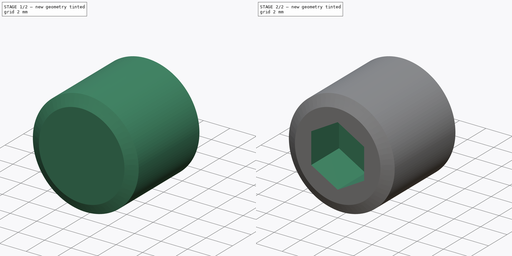
[diagram: build sequence overview — one tinted view per stage of 2, left to right]
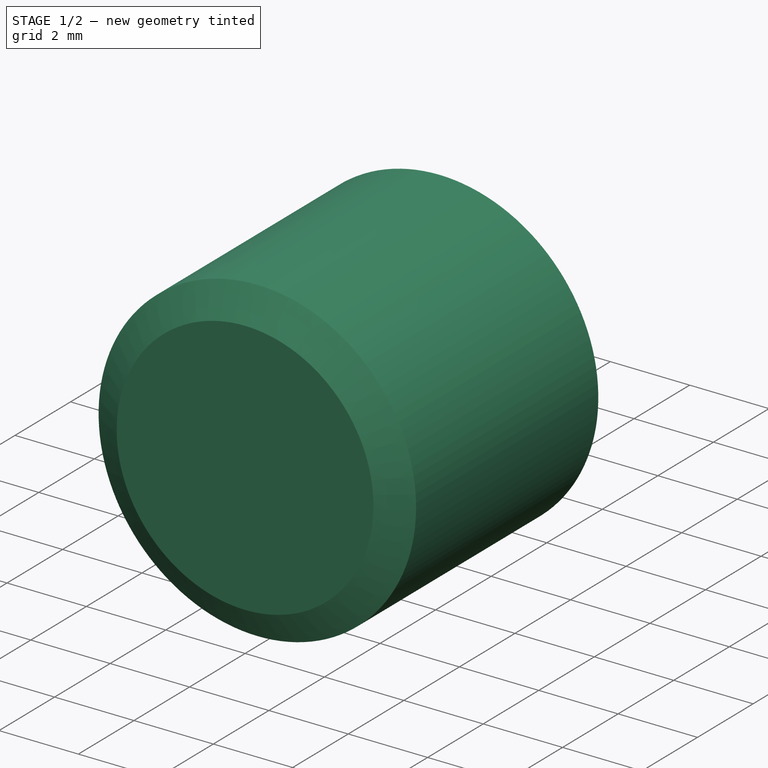
[diagram: stage 1 of 2 — iso view after this stage's code; geometry added in this stage tinted green]
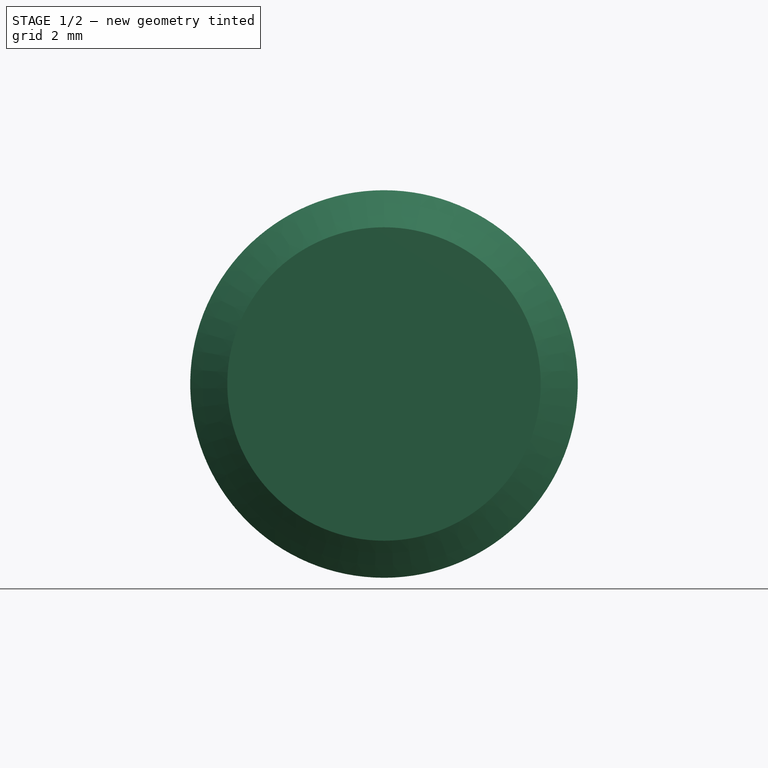
[diagram: stage 1 of 2 — front view after this stage's code; geometry added in this stage tinted green]
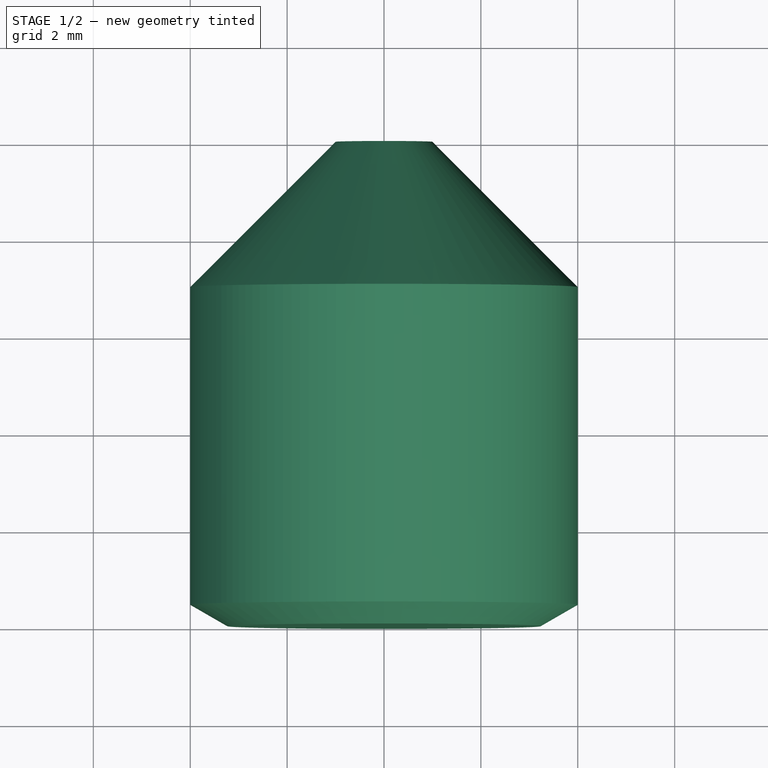
[diagram: stage 1 of 2 — top view after this stage's code; geometry added in this stage tinted green]
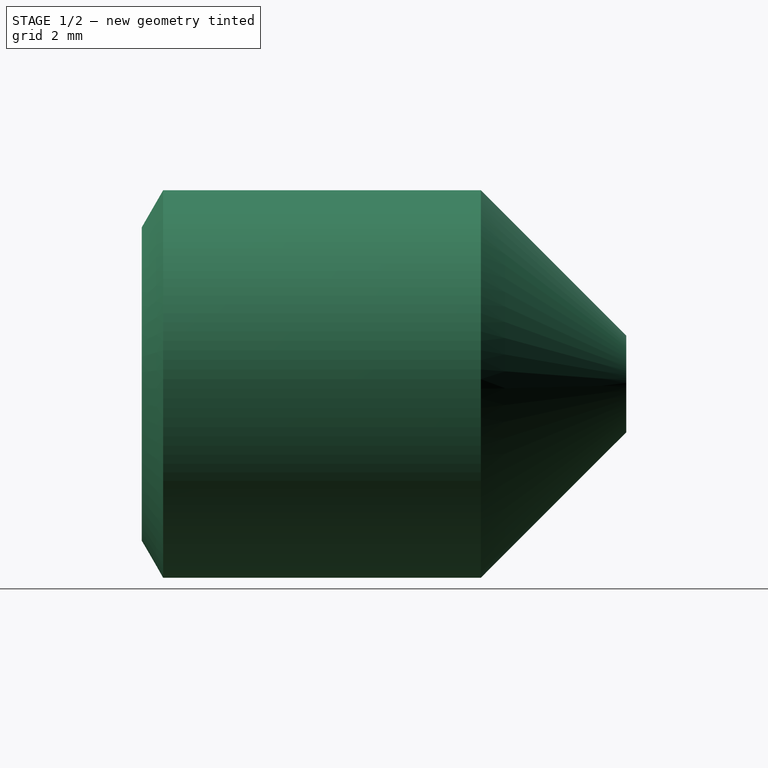
[diagram: stage 1 of 2 — right view after this stage's code; geometry added in this stage tinted green]
FCSTD DOCUMENT  (FreeCAD 0.15R4332 (Git))
Label: Gewindestift_DIN914-M8
License: CC-BY 3.0
LicenseURL: http://creativecommons.org/licenses/by/3.0/
objects: Sketcher::SketchObject×2, PartDesign::Revolution×1, PartDesign::Pocket×1
note: 6 computed .brp shape members not serialized (recipe doc carries the construction recipe); baked Part::Feature solids carry a one-line shape summary decoded from their .brp

FEATURE [Sketcher::SketchObject] Sketch
  Placement = pos=(0,0,0) rot=(0.57735,0.57735,0.57735;2.0944rad)
  sketch-geometry (6):
    g0: LineSegment StartX=0 StartY=0 StartZ=0 EndX=0 EndY=3.235 EndZ=0
    g1: LineSegment StartX=0 StartY=3.235 StartZ=0 EndX=0.441673 EndY=4 EndZ=0
    g2: LineSegment StartX=0.441673 StartY=4 StartZ=0 EndX=7 EndY=4 EndZ=0
    g3: LineSegment StartX=7 StartY=4 StartZ=0 EndX=10 EndY=1 EndZ=0
    g4: LineSegment StartX=10 StartY=1 StartZ=0 EndX=10 EndY=0 EndZ=0
    g5: LineSegment StartX=10 StartY=0 StartZ=0 EndX=0 EndY=0 EndZ=0
  constraints (17):
    c: Coincident(g-1,g0)
    c: Vertical(g0)
    c: Coincident(g0,g1)
    c: Coincident(g1,g2)
    c: Horizontal(g2)
    c: Coincident(g2,g3)
    c: Coincident(g3,g4)
    c: Vertical(g4)
    c: Coincident(g4,g5)
    c: Coincident(g5,g0)
    c: Horizontal(g5)
    c: Angle(g3,g5) = 0.785398
    c: DistanceY(g4) = -1
    c: DistanceY(g-1,g0) = 3.235
    c: DistanceY(g-1,g2) = 4
    c: Angle(g5,g1) = 1.0472
    c: DistanceX(g0,g3) = 10
FEATURE [PartDesign::Revolution] Revolution
  Angle = 360
  Axis = (0,1,0)
  Base = (0,0,0)
  Placement = pos=(0,0,0) rot=(0.57735,0.57735,0.57735;2.0944rad)
  ReferenceAxis = -> Sketch [H_Axis]
  Sketch = -> Sketch
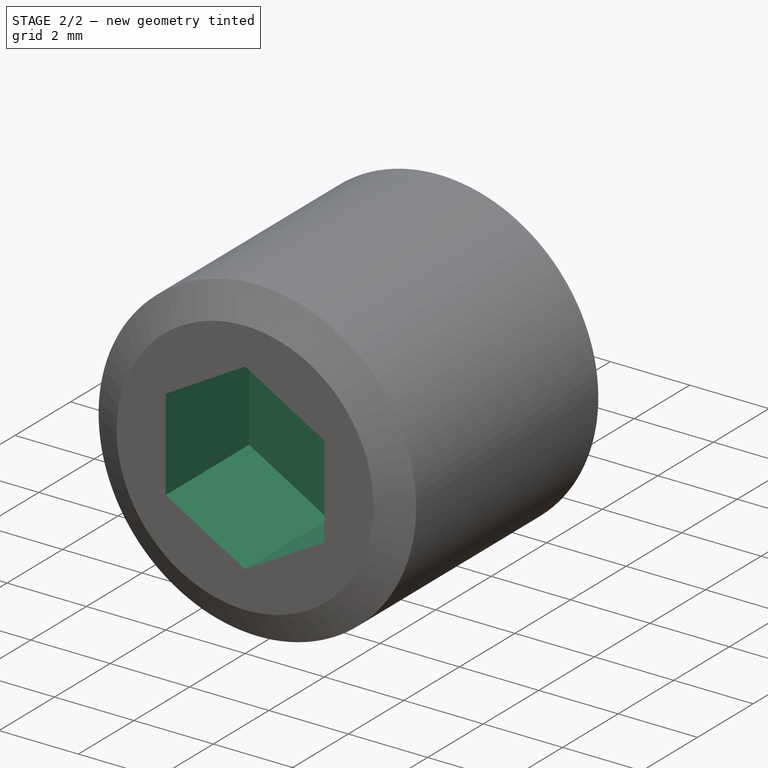
[diagram: stage 2 of 2 — iso view after this stage's code; geometry added in this stage tinted green]
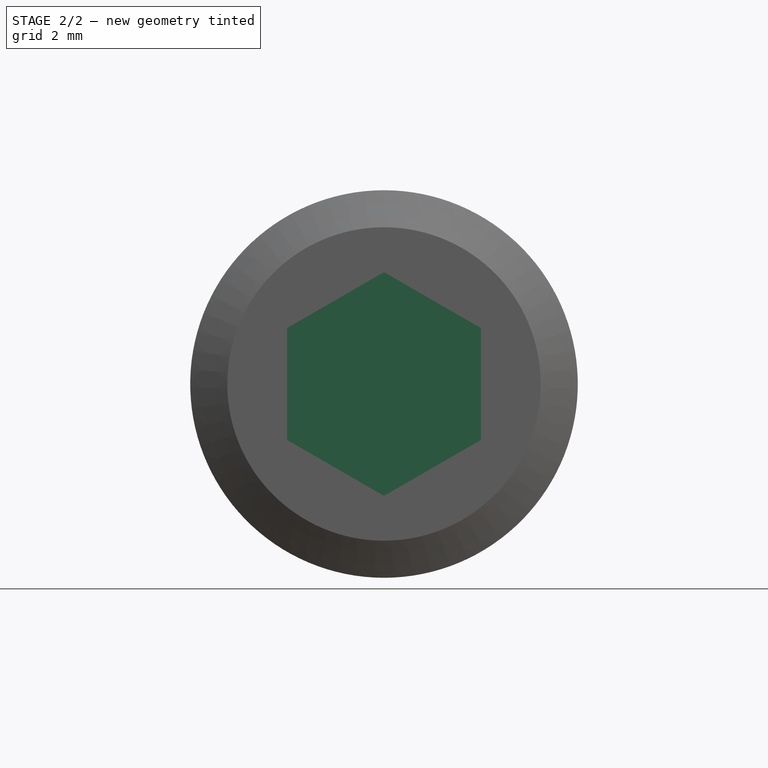
[diagram: stage 2 of 2 — front view after this stage's code; geometry added in this stage tinted green]
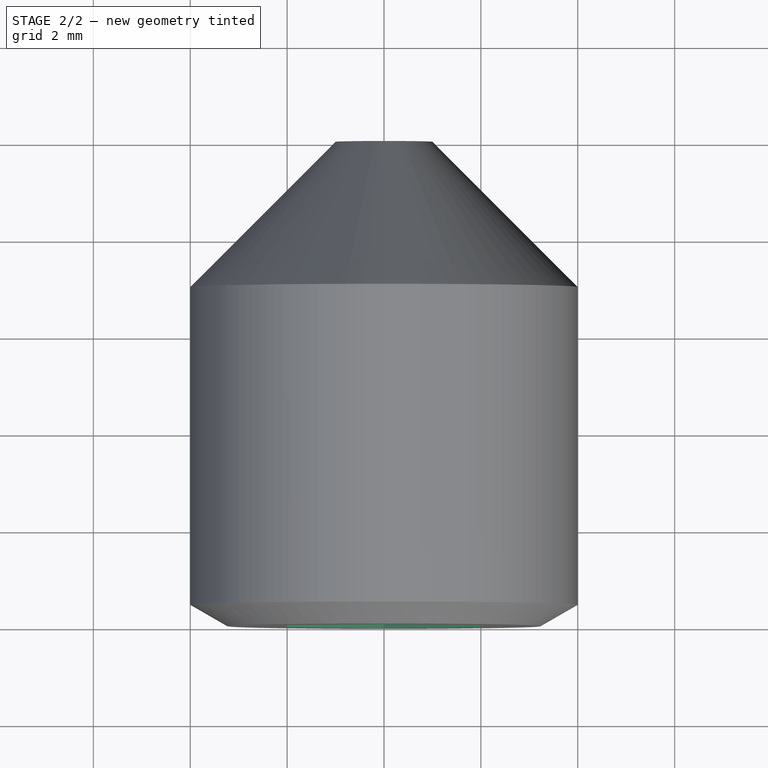
[diagram: stage 2 of 2 — top view after this stage's code; geometry added in this stage tinted green]
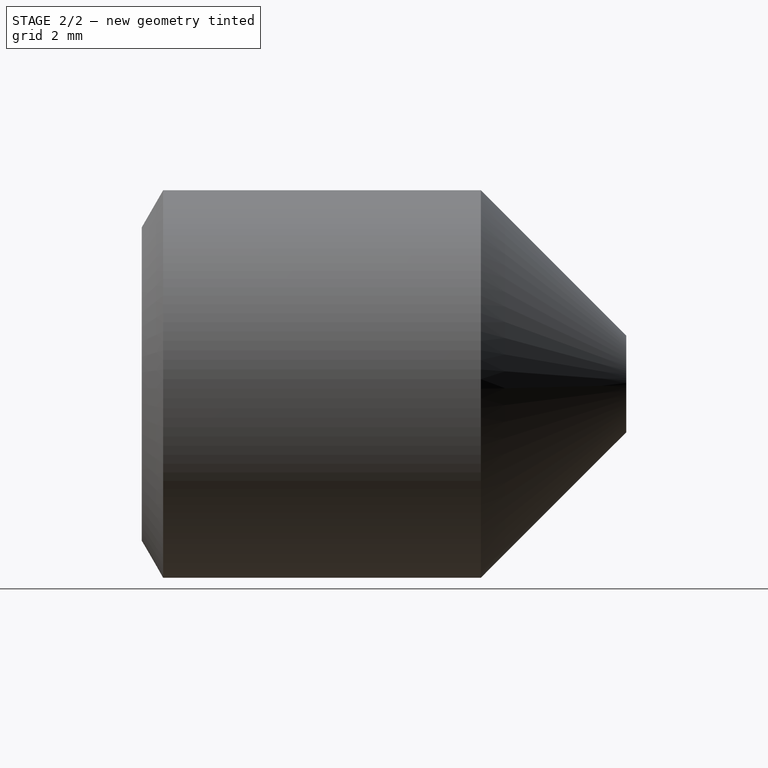
[diagram: stage 2 of 2 — right view after this stage's code; geometry added in this stage tinted green]
FEATURE [Sketcher::SketchObject] Sketch001
  Placement = pos=(0,0,0) rot=(0.57735,0.57735,-0.57735;2.0944rad)
  Support = -> Revolution [Face1]
  sketch-geometry (6):
    g0: LineSegment StartX=-1.1547 StartY=-2 StartZ=0 EndX=1.1547 EndY=-2 EndZ=0
    g1: LineSegment StartX=1.1547 StartY=-2 StartZ=0 EndX=2.3094 EndY=0 EndZ=0
    g2: LineSegment StartX=2.3094 StartY=0 StartZ=0 EndX=1.1547 EndY=2 EndZ=0
    g3: LineSegment StartX=1.1547 StartY=2 StartZ=0 EndX=-1.1547 EndY=2 EndZ=0
    g4: LineSegment StartX=-1.1547 StartY=2 StartZ=0 EndX=-2.3094 EndY=0 EndZ=0
    g5: LineSegment StartX=-2.3094 StartY=0 StartZ=0 EndX=-1.1547 EndY=-2 EndZ=0
  constraints (18):
    c: Horizontal(g0)
    c: Coincident(g0,g1)
    c: PointOnObject(g1,g-1)
    c: Coincident(g1,g2)
    c: Coincident(g2,g3)
    c: Horizontal(g3)
    c: Coincident(g3,g4)
    c: PointOnObject(g4,g-1)
    c: Coincident(g4,g5)
    c: Coincident(g5,g0)
    c: Equal(g3,g2)
    c: Equal(g2,g1)
    c: Equal(g1,g0)
    c: Equal(g0,g5)
    c: Equal(g5,g4)
    c: Symmetric(g2,g3,g-2)
    c: DistanceY(g2,g0) = -4
    c: Angle(g3,g2) = 2.0944
FEATURE [PartDesign::Pocket] Pocket  label="Gewindestift DIN 914 - M8 x 10 #"
  Length = 3
  Placement = pos=(0,0,0) rot=(0.57735,0.57735,0.57735;2.0944rad)
  Sketch = -> Sketch001
  Type = 0
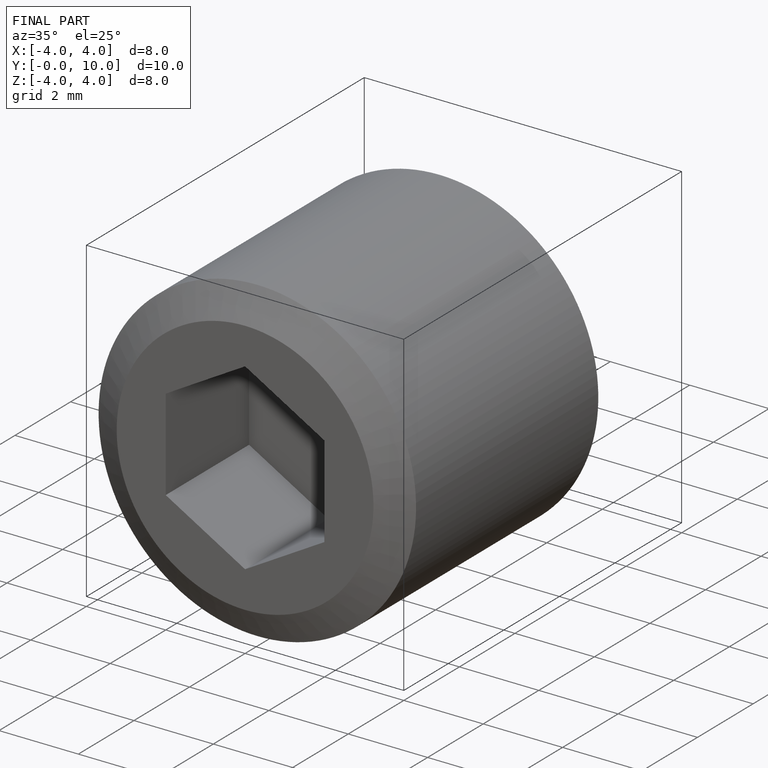
[diagram: finished part — iso view with bounding-box wireframe]
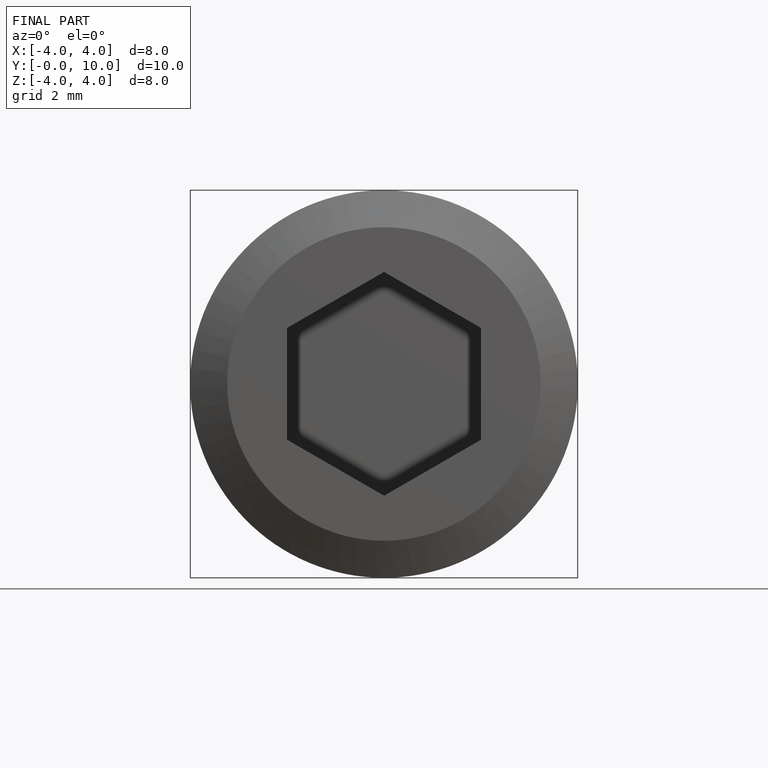
[diagram: finished part — front view with bounding-box wireframe]
